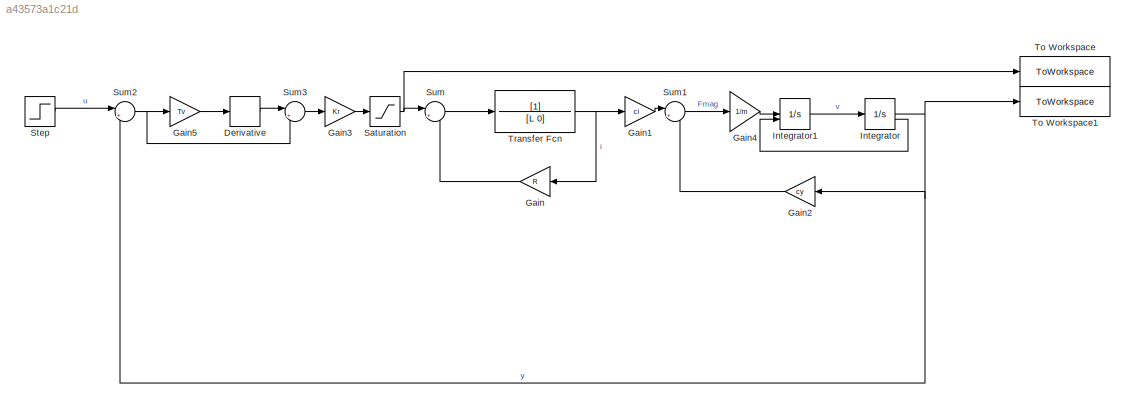
MODEL slx_a43573a1c21d
KIND model
CONFIG AbsTol = auto
CONFIG EnableMultiTasking = off
CONFIG FixedStep = auto
CONFIG MaxStep = auto
CONFIG MinStep = auto
CONFIG RelTol = 1e-3
CONFIG SampleTimeConstraint = Unconstrained
CONFIG SolverName = VariableStepAuto
CONFIG StartTime = 0.0
CONFIG StopTime = 1
BLOCK [Derivative] Derivative
BLOCK [Gain] Gain
  Gain = R
  NameLocation = top
BLOCK [Gain] Gain1
  Gain = ci
BLOCK [Gain] Gain2
  Gain = cy
  NameLocation = top
BLOCK [Gain] Gain3
  Gain = Kr
BLOCK [Gain] Gain4
  Gain = 1/m
BLOCK [Gain] Gain5
  Gain = Tv
BLOCK [Integrator] Integrator
  InitialCondition = init_pos
  LimitOutput = on
  LowerSaturationLimit = low_lim
  ShowSaturationPort = on
  UpperSaturationLimit = high_lim
BLOCK [Integrator] Integrator1
  ExternalReset = either
BLOCK [Saturate] Saturation
  LowerLimit = -op_lim
  UpperLimit = op_lim
BLOCK [Step] Step
  After = 0
  SampleTime = 0
  Time = 0
BLOCK [Sum] Sum
  Inputs = |+-
BLOCK [Sum] Sum1
  Inputs = |++
BLOCK [Sum] Sum2
  Inputs = |+-
BLOCK [Sum] Sum3
  Inputs = |++
BLOCK [ToWorkspace] To Workspace
  FixptAsFi = on
  MaxDataPoints = inf
  SampleTime = -1
  SaveFormat = Timeseries
  VariableName = stellgroesse
BLOCK [ToWorkspace] To Workspace1
  FixptAsFi = on
  MaxDataPoints = inf
  SampleTime = -1
  SaveFormat = Timeseries
  VariableName = regelgroesse
BLOCK [TransferFcn] Transfer Fcn
  Denominator = [L 0]
LINE Derivative:1 -> Sum3:1
LINE Gain1:1 -> Sum1:1
LINE Gain2:1 -> Sum1:2
LINE Gain3:1 -> Saturation:1
LINE Gain4:1 -> Integrator1:1
LINE Gain5:1 -> Derivative:1
LINE Gain:1 -> Sum:2
LINE Integrator1:1 -> Integrator:1
NET Integrator:1 -> Gain2:1, Sum2:2, To Workspace1:1
LINE Integrator:2 -> Integrator1:2
NET Saturation:1 -> Sum:1, To Workspace:1
LINE Step:1 -> Sum2:1
LINE Sum1:1 -> Gain4:1
NET Sum2:1 -> Gain5:1, Sum3:2
LINE Sum3:1 -> Gain3:1
LINE Sum:1 -> Transfer Fcn:1
NET Transfer Fcn:1 -> Gain1:1, Gain:1
note: NET lines group one-source signal fan-out (src -> all destinations, sorted); 1:1 wires keep LINE
